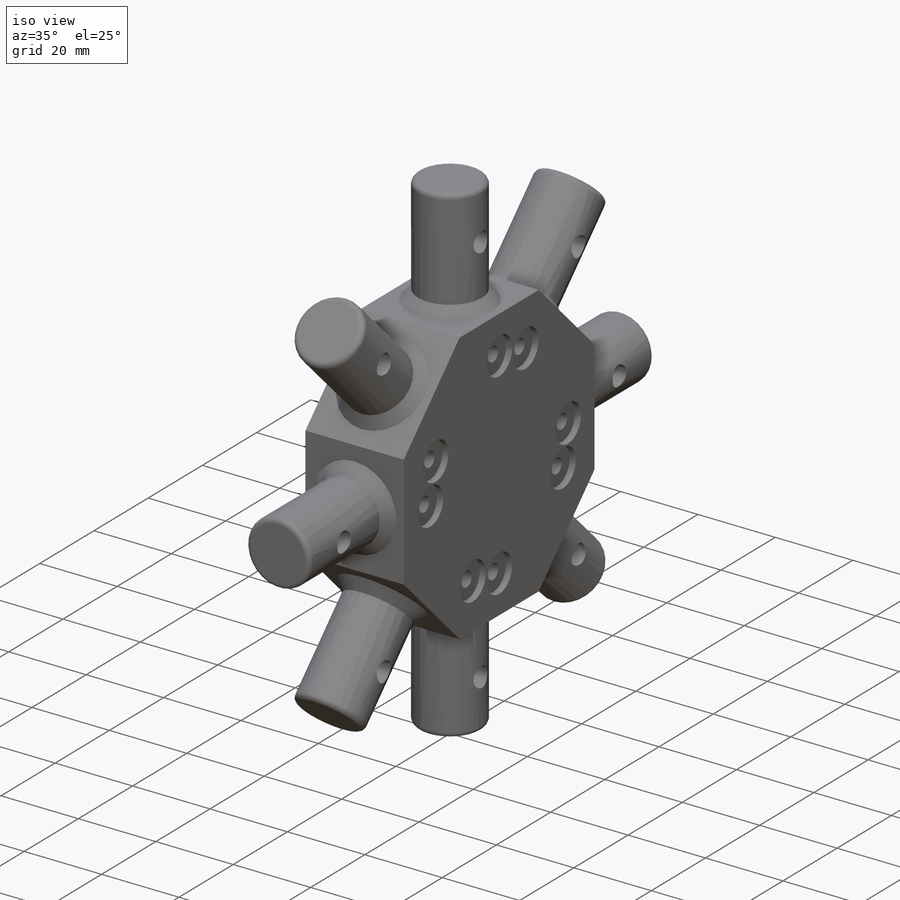
[diagram: iso view]
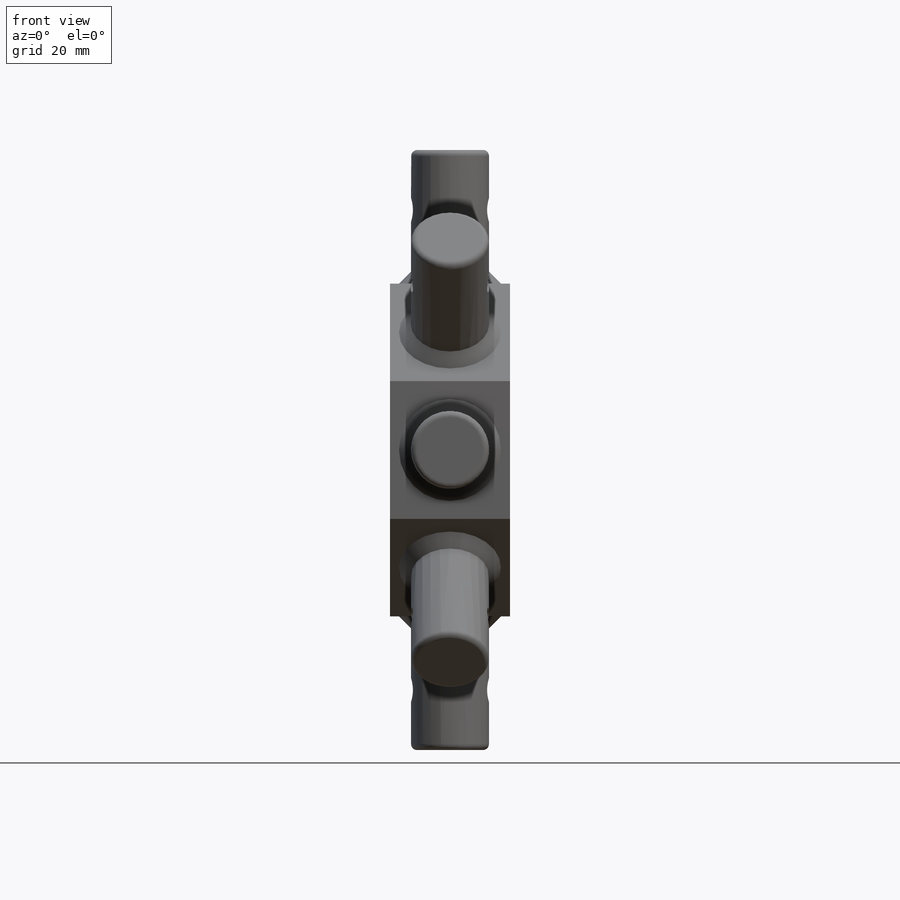
[diagram: front view]
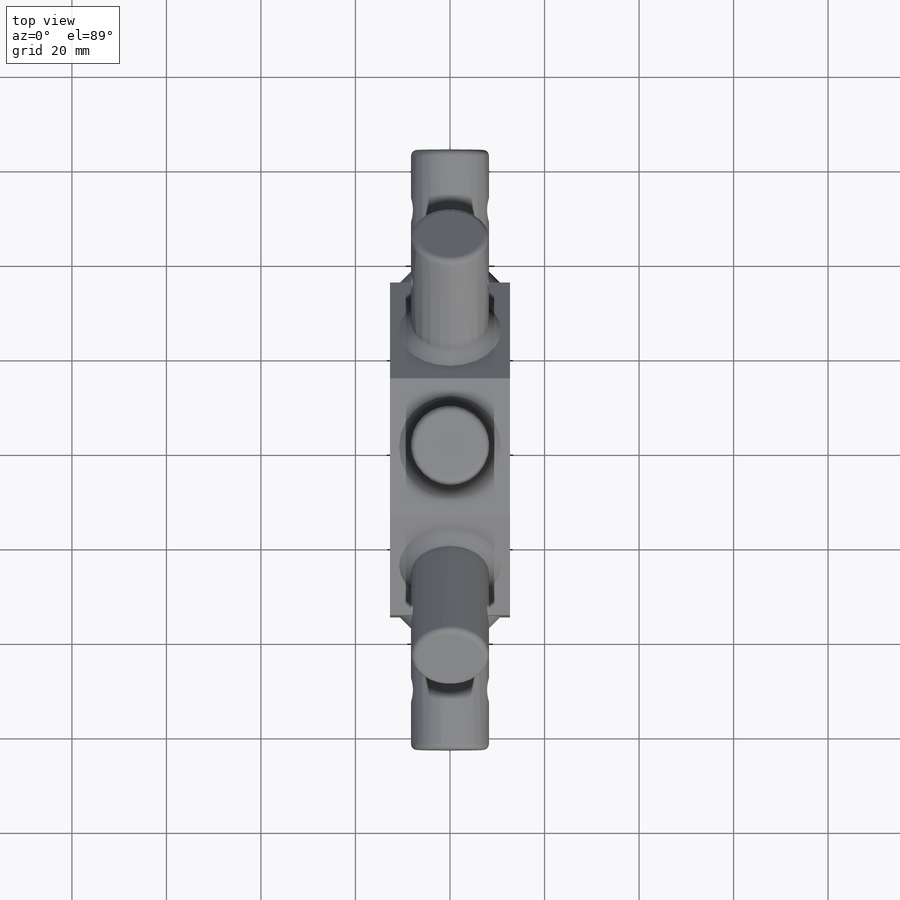
[diagram: top view]
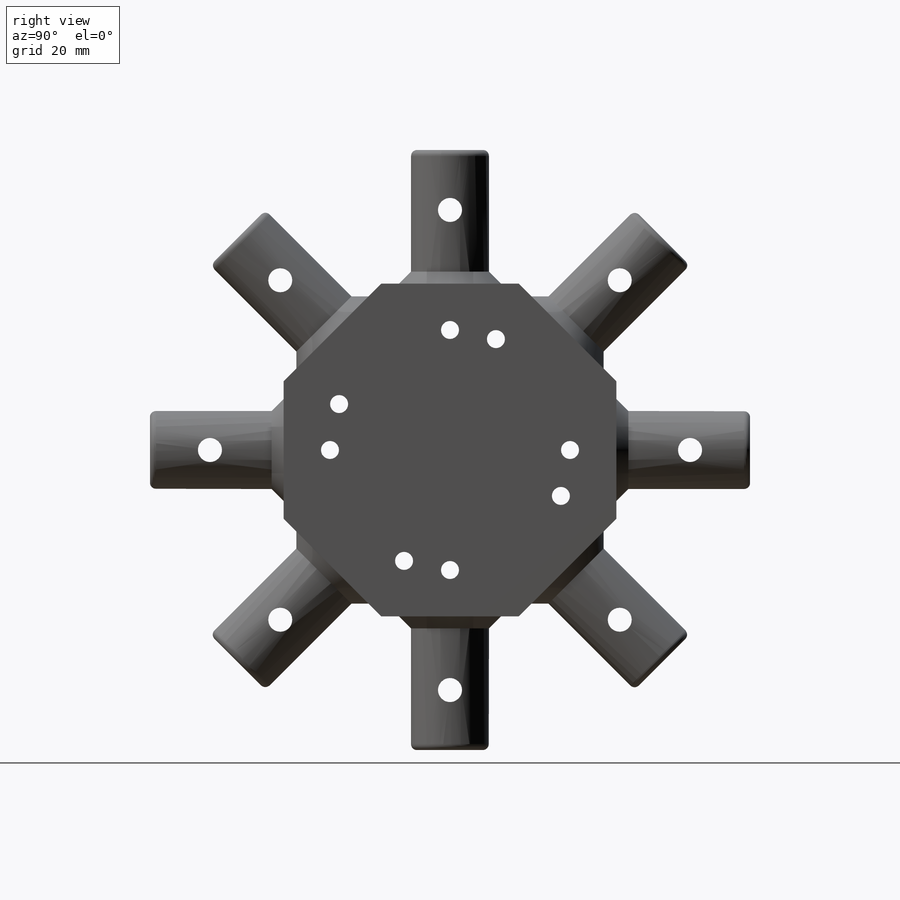
[diagram: right view]
SOLIDWORKS PART (.sldprt)
format: sldprt  version: not decoded by parser v0  size: 404,480 bytes
history: native  units: mm
features: sketch x6, cut_extrude x4, pattern_circular x3, extrude x2, material x1, fillet x1, chamfer x1 (+13 scaffold rows collapsed)
feature tree (31):
  scaffold x13  (default folders/planes/origin — collapsed)
  material  "Material <not specified>"
  sketch  "Sketch1"  dims[D1=76.2mm]
  extrude  "Boss-Extrude1"  Depth=25.4mm
  sketch  "Sketch11"  dims[D1=76.2mm]
  cut_extrude  "Cut-Extrude6"  [1 undecoded]
  sketch  "3DSketch1"  dims[D2=16.51mm D1=63.5mm]
  extrude  "Boss-Extrude2"  Depth=101.6mm
  pattern_circular  "CirPattern1"  Count=8 Angle=360deg
  sketch  "Sketch3"  dims[D1=5.08mm D2=50.8mm]
  cut_extrude  "Cut-Extrude1"  Depth=25.4mm
  pattern_circular  "CirPattern2"  Count=8 Angle=360deg
  sketch  "Sketch4"  dims[D1=3.81mm D2=25.4mm]
  cut_extrude  "Cut-Extrude2"  Depth=25.4mm
  sketch  "Sketch8"  dims[.380=9.652mm]
  cut_extrude  "Cut-Extrude3"  Depth=1.5875mm
  pattern_circular  "CirPattern3"  Count=16 Angle=22.5deg
  fillet  "Fillet2"  Radius=1.27mm
  chamfer  "Chamfer1"  Distance=2.54mm Angle=45deg
decode coverage: 16 of 17 modeling features carry decoded parameters
note: 1 parameter value undecoded
note: suppression state not decoded; provenance and decode notes live in map.json
